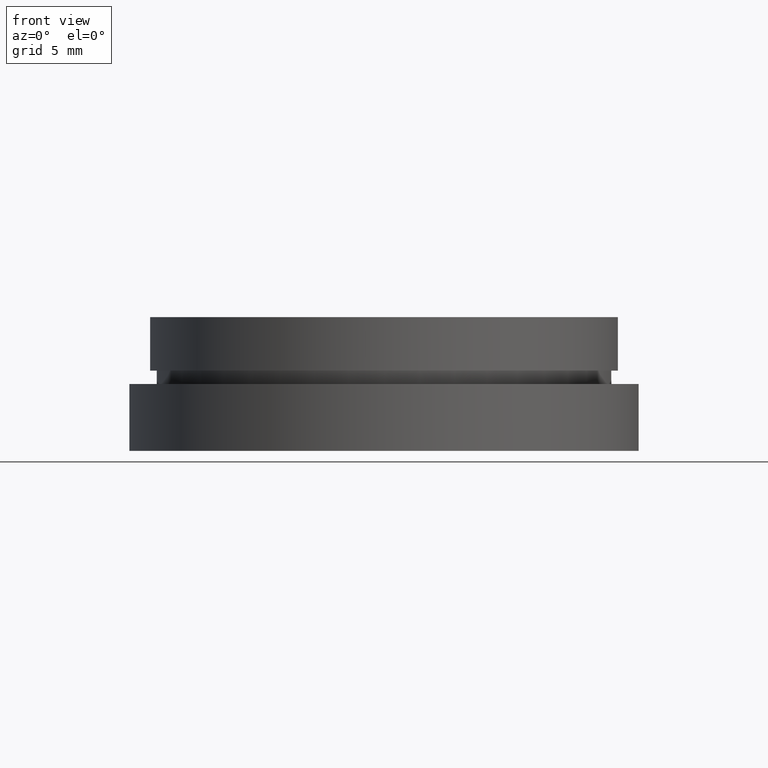
[diagram: clean part render]
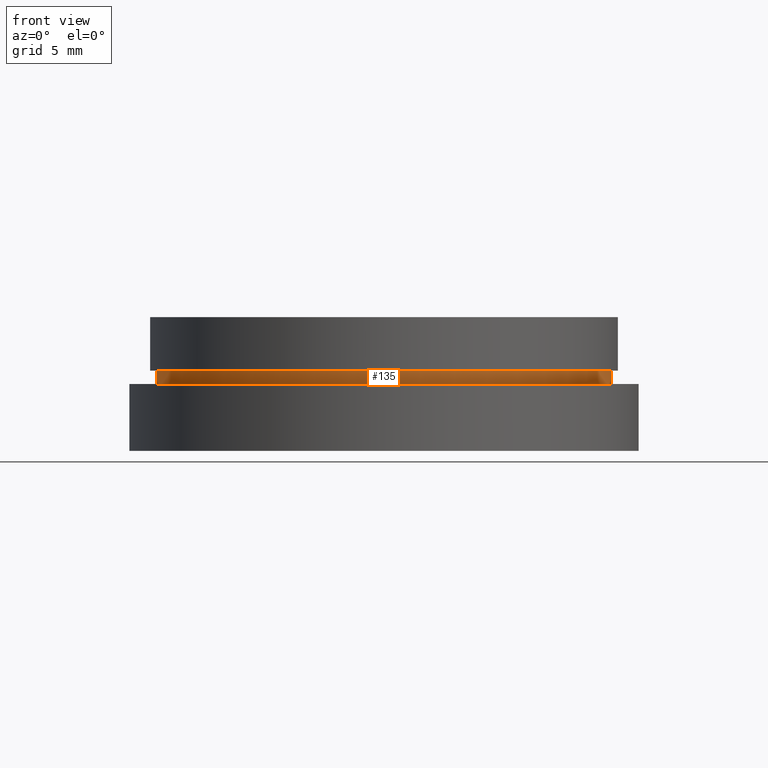
[diagram: same view with one face highlighted and labeled with its STEP entity id]
A machine part, front view. The second image highlights one B-rep face of the part: STEP entity #135.
In plain terms, the highlighted cylindrical surface (partial cylindrical patch) has radius 17 mm, axis along (-0, -0, -1).
Its self-contained STEP definition (entity closure, byte-faithful):
#4 = CARTESIAN_POINT ( 'NONE',  ( 17.00000000000000400, 2.081899558550500700E-015, -5.000000000000000900 ) ) ;
#29 = EDGE_CURVE ( 'NONE', #339, #328, #33, .T. ) ;
#33 = CIRCLE ( 'NONE', #255, 17.00000000000000400 ) ;
#42 = DIRECTION ( 'NONE',  ( -0.0000000000000000000, -0.0000000000000000000, -1.000000000000000000 ) ) ;
#50 = EDGE_CURVE ( 'NONE', #178, #399, #370, .T. ) ;
#62 = LINE ( 'NONE', #237, #323 ) ;
#66 = ORIENTED_EDGE ( 'NONE', *, *, #367, .F. ) ;
#74 = CARTESIAN_POINT ( 'NONE',  ( 17.00000000000000400, 2.081899558550500700E-015, -4.000000000000000000 ) ) ;
#86 = AXIS2_PLACEMENT_3D ( 'NONE', #381, #306, #429 ) ;
#112 = CARTESIAN_POINT ( 'NONE',  ( 0.0000000000000000000, 0.0000000000000000000, -4.000000000000000000 ) ) ;
#135 = ADVANCED_FACE ( 'NONE', ( #413 ), #384, .T. ) ;
#171 = ORIENTED_EDGE ( 'NONE', *, *, #50, .T. ) ;
#178 = VERTEX_POINT ( 'NONE', #74 ) ;
#182 = CARTESIAN_POINT ( 'NONE',  ( 17.00000000000000400, 2.081899558550500700E-015, -19.14057971014493000 ) ) ;
#190 = AXIS2_PLACEMENT_3D ( 'NONE', #112, #258, #191 ) ;
#191 = DIRECTION ( 'NONE',  ( -1.000000000000000000, 0.0000000000000000000, 0.0000000000000000000 ) ) ;
#199 = DIRECTION ( 'NONE',  ( -0.0000000000000000000, -0.0000000000000000000, -1.000000000000000000 ) ) ;
#217 = DIRECTION ( 'NONE',  ( -1.000000000000000000, 0.0000000000000000000, 0.0000000000000000000 ) ) ;
#226 = EDGE_LOOP ( 'NONE', ( #66, #171, #254, #238 ) ) ;
#237 = CARTESIAN_POINT ( 'NONE',  ( -17.00000000000000400, 0.0000000000000000000, -19.14057971014493000 ) ) ;
#238 = ORIENTED_EDGE ( 'NONE', *, *, #29, .F. ) ;
#248 = CARTESIAN_POINT ( 'NONE',  ( 0.0000000000000000000, 0.0000000000000000000, -5.000000000000000900 ) ) ;
#254 = ORIENTED_EDGE ( 'NONE', *, *, #275, .T. ) ;
#255 = AXIS2_PLACEMENT_3D ( 'NONE', #248, #199, #217 ) ;
#256 = VECTOR ( 'NONE', #295, 1000.000000000000000 ) ;
#258 = DIRECTION ( 'NONE',  ( -0.0000000000000000000, -0.0000000000000000000, -1.000000000000000000 ) ) ;
#271 = LINE ( 'NONE', #182, #256 ) ;
#275 = EDGE_CURVE ( 'NONE', #399, #328, #62, .T. ) ;
#288 = CARTESIAN_POINT ( 'NONE',  ( -17.00000000000000400, 0.0000000000000000000, -5.000000000000000900 ) ) ;
#295 = DIRECTION ( 'NONE',  ( -0.0000000000000000000, -0.0000000000000000000, -1.000000000000000000 ) ) ;
#306 = DIRECTION ( 'NONE',  ( -0.0000000000000000000, -0.0000000000000000000, -1.000000000000000000 ) ) ;
#323 = VECTOR ( 'NONE', #42, 1000.000000000000000 ) ;
#328 = VERTEX_POINT ( 'NONE', #288 ) ;
#337 = CARTESIAN_POINT ( 'NONE',  ( -17.00000000000000400, 0.0000000000000000000, -4.000000000000000000 ) ) ;
#339 = VERTEX_POINT ( 'NONE', #4 ) ;
#367 = EDGE_CURVE ( 'NONE', #178, #339, #271, .T. ) ;
#370 = CIRCLE ( 'NONE', #190, 17.00000000000000400 ) ;
#381 = CARTESIAN_POINT ( 'NONE',  ( 0.0000000000000000000, 0.0000000000000000000, -19.14057971014493000 ) ) ;
#384 = CYLINDRICAL_SURFACE ( 'NONE', #86, 17.00000000000000400 ) ;
#399 = VERTEX_POINT ( 'NONE', #337 ) ;
#413 = FACE_OUTER_BOUND ( 'NONE', #226, .T. ) ;
#429 = DIRECTION ( 'NONE',  ( -1.000000000000000000, 0.0000000000000000000, 0.0000000000000000000 ) ) ;